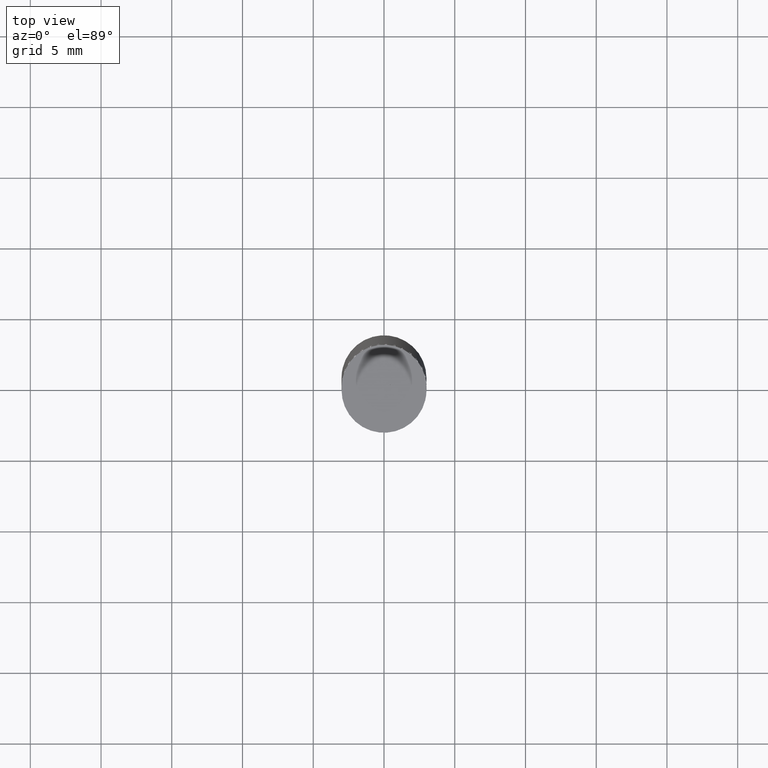
[diagram: clean part render]
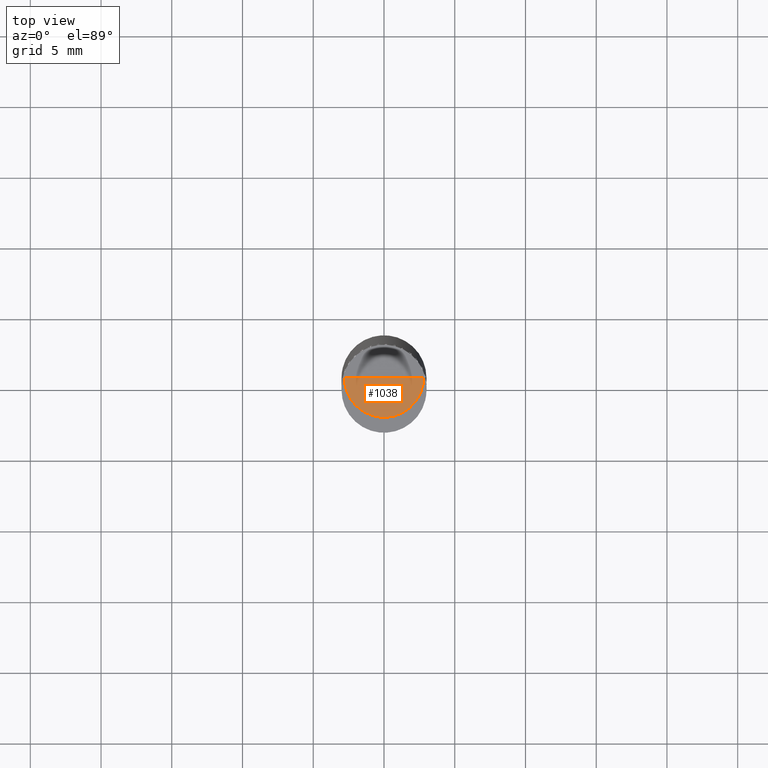
[diagram: same view with one face highlighted and labeled with its STEP entity id]
A machine part, top view. The second image highlights one B-rep face of the part: STEP entity #1038.
In plain terms, the highlighted face is a freeform B-spline surface patch.
Its self-contained STEP definition (entity closure, byte-faithful):
#726=CARTESIAN_POINT('',(2.8,0.0,35.0));
#730=CARTESIAN_POINT('',(-2.8,0.0,35.0));
#731=CARTESIAN_POINT('',(0.0,0.0,35.0));
#738=CARTESIAN_POINT('',(-2.8,-2.8,35.0));
#739=CARTESIAN_POINT('',(0.0,-2.8,35.0));
#740=CARTESIAN_POINT('',(2.8,-2.8,35.0));
#1023=(
BOUNDED_SURFACE()
B_SPLINE_SURFACE(1,2,(
(#730,#738,#739,#740,#726),
(#731,#731,#731,#731,#731)
), .UNSPECIFIED.,.F.,.F.,.F.)
B_SPLINE_SURFACE_WITH_KNOTS((2,2),(3,2,3),(
0.0,1.0),(
0.0,0.5,1.0), .UNSPECIFIED.)
GEOMETRIC_REPRESENTATION_ITEM()
RATIONAL_B_SPLINE_SURFACE(((1.0,0.707106781187,1.0,0.707106781187,1.0),
(1.0,0.707106781187,1.0,0.707106781187,1.0)
))
REPRESENTATION_ITEM('')
SURFACE()
);
#1024=(
BOUNDED_CURVE()
B_SPLINE_CURVE(2,(#726,#740,#739,#738,#730),.UNSPECIFIED.,.F.,.F.)
B_SPLINE_CURVE_WITH_KNOTS((3,2,3),
(0.0,0.5,1.0),.UNSPECIFIED.)
CURVE()
GEOMETRIC_REPRESENTATION_ITEM()
RATIONAL_B_SPLINE_CURVE((1.0,0.707106781187,1.0,0.707106781187,1.0))
REPRESENTATION_ITEM('')
);
#1025=(
BOUNDED_CURVE()
B_SPLINE_CURVE(1,(#730,#731),.UNSPECIFIED.,.F.,.F.)
B_SPLINE_CURVE_WITH_KNOTS((2,2),
(0.0,1.0),.UNSPECIFIED.)
CURVE()
GEOMETRIC_REPRESENTATION_ITEM()
RATIONAL_B_SPLINE_CURVE((1.0,1.0))
REPRESENTATION_ITEM('')
);
#1026=(
BOUNDED_CURVE()
B_SPLINE_CURVE(1,(#731,#726),.UNSPECIFIED.,.F.,.F.)
B_SPLINE_CURVE_WITH_KNOTS((2,2),
(0.0,1.0),.UNSPECIFIED.)
CURVE()
GEOMETRIC_REPRESENTATION_ITEM()
RATIONAL_B_SPLINE_CURVE((1.0,1.0))
REPRESENTATION_ITEM('')
);
#1027=VERTEX_POINT('',#726);
#1028=VERTEX_POINT('',#730);
#1029=VERTEX_POINT('',#731);
#1030=EDGE_CURVE('',#1027,#1028,#1024,.T.);
#1031=EDGE_CURVE('',#1028,#1029,#1025,.T.);
#1032=EDGE_CURVE('',#1029,#1027,#1026,.T.);
#1033=ORIENTED_EDGE('',*,*,#1030,.T.);
#1034=ORIENTED_EDGE('',*,*,#1031,.T.);
#1035=ORIENTED_EDGE('',*,*,#1032,.T.);
#1036=EDGE_LOOP('',(#1033,#1034,#1035));
#1037=FACE_OUTER_BOUND('',#1036,.T.);
#1038=ADVANCED_FACE('',(#1037),#1023,.T.);